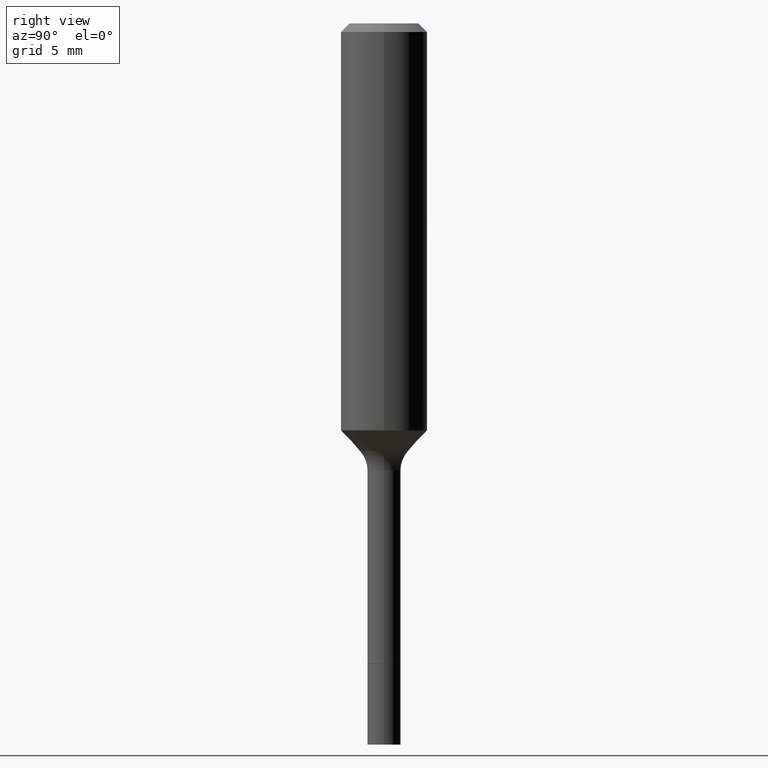
[diagram: clean part render]
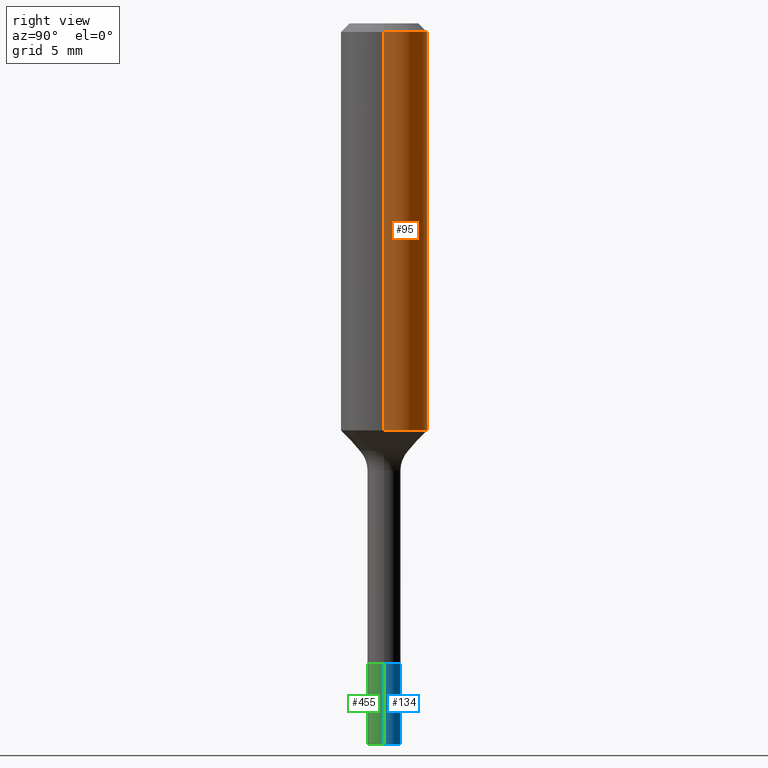
[diagram: same view with three faces highlighted in distinct colors, each labeled with its STEP entity id]
A machine part, right view with three faces highlighted in distinct colors.
Their STEP definitions:

[orange] entity #95 — the highlighted cylindrical surface (partial cylindrical patch) has radius 2.9997 mm, axis along (-0, 0, 1).
#15 = AXIS2_PLACEMENT_3D ( 'NONE', #96, #252, #222 ) ;
#18 = EDGE_CURVE ( 'NONE', #481, #494, #454, .T. ) ;
#31 = DIRECTION ( 'NONE',  ( -2.445468806185136597E-29, 3.491481338843145583E-15, 1.000000000000000000 ) ) ;
#37 = CARTESIAN_POINT ( 'NONE',  ( 0.1181000000000001354, -4.703439871600973275E-15, -1.110918719861007542 ) ) ;
#60 = CARTESIAN_POINT ( 'NONE',  ( -0.1180999999999999966, -1.141459413362170855E-15, -0.02362000000000013741 ) ) ;
#84 = CIRCLE ( 'NONE', #15, 0.1180999999999999966 ) ;
#95 = ADVANCED_FACE ( 'NONE', ( #390 ), #116, .T. ) ;
#96 = CARTESIAN_POINT ( 'NONE',  ( 5.776197320209326656E-31, -8.246878922347558061E-17, -0.02362000000000013741 ) ) ;
#102 = CARTESIAN_POINT ( 'NONE',  ( -0.1181000000000000660, 8.391509709326787887E-16, -5.809262341591047287E-30 ) ) ;
#116 = CYLINDRICAL_SURFACE ( 'NONE', #309, 0.1181000000000000660 ) ;
#121 = ORIENTED_EDGE ( 'NONE', *, *, #471, .F. ) ;
#125 = ORIENTED_EDGE ( 'NONE', *, *, #18, .T. ) ;
#142 = LINE ( 'NONE', #216, #332 ) ;
#145 = CARTESIAN_POINT ( 'NONE',  ( 2.716717075627218556E-29, -3.878751979366224224E-15, -1.110918719861007542 ) ) ;
#184 = VECTOR ( 'NONE', #220, 39.37007874015748143 ) ;
#216 = CARTESIAN_POINT ( 'NONE',  ( 0.1181000000000000660, -8.246878922347485584E-16, 5.758764772215003944E-30 ) ) ;
#220 = DIRECTION ( 'NONE',  ( -2.445468806185136877E-29, 3.491481338843145188E-15, 1.000000000000000000 ) ) ;
#222 = DIRECTION ( 'NONE',  ( 1.000000000000000000, -6.982962677686266711E-15, 0.000000000000000000 ) ) ;
#252 = DIRECTION ( 'NONE',  ( -2.445468806185136597E-29, 3.491481338843145583E-15, 1.000000000000000000 ) ) ;
#259 = VERTEX_POINT ( 'NONE', #37 ) ;
#279 = VERTEX_POINT ( 'NONE', #437 ) ;
#309 = AXIS2_PLACEMENT_3D ( 'NONE', #507, #31, #424 ) ;
#310 = CIRCLE ( 'NONE', #371, 0.1181000000000001354 ) ;
#324 = ORIENTED_EDGE ( 'NONE', *, *, #503, .T. ) ;
#332 = VECTOR ( 'NONE', #498, 39.37007874015748143 ) ;
#340 = CARTESIAN_POINT ( 'NONE',  ( -0.1181000000000001354, -3.039601008433544844E-15, -1.110918719861007542 ) ) ;
#371 = AXIS2_PLACEMENT_3D ( 'NONE', #145, #452, #373 ) ;
#373 = DIRECTION ( 'NONE',  ( 1.000000000000000000, -6.982962677686265133E-15, 0.000000000000000000 ) ) ;
#390 = FACE_OUTER_BOUND ( 'NONE', #412, .T. ) ;
#412 = EDGE_LOOP ( 'NONE', ( #324, #125, #121, #422 ) ) ;
#422 = ORIENTED_EDGE ( 'NONE', *, *, #466, .F. ) ;
#424 = DIRECTION ( 'NONE',  ( 1.000000000000000000, -6.982962677686266711E-15, 4.876176775795936353E-29 ) ) ;
#437 = CARTESIAN_POINT ( 'NONE',  ( 0.1180999999999999966, -9.071566814582237199E-16, -0.02362000000000013741 ) ) ;
#452 = DIRECTION ( 'NONE',  ( -2.445468806185136597E-29, 3.491481338843145583E-15, 1.000000000000000000 ) ) ;
#454 = LINE ( 'NONE', #102, #184 ) ;
#466 = EDGE_CURVE ( 'NONE', #259, #279, #142, .T. ) ;
#471 = EDGE_CURVE ( 'NONE', #279, #494, #84, .T. ) ;
#481 = VERTEX_POINT ( 'NONE', #340 ) ;
#494 = VERTEX_POINT ( 'NONE', #60 ) ;
#498 = DIRECTION ( 'NONE',  ( -2.445468806185136877E-29, 3.491481338843145188E-15, 1.000000000000000000 ) ) ;
#503 = EDGE_CURVE ( 'NONE', #259, #481, #310, .T. ) ;
#507 = CARTESIAN_POINT ( 'NONE',  ( 0.000000000000000000, 0.000000000000000000, 0.000000000000000000 ) ) ;

[blue] entity #134 — the highlighted cylindrical surface (edge-blend (fillet) strip) has radius 1.1506 mm, axis along (-0, 0, 1).
#1 = VERTEX_POINT ( 'NONE', #415 ) ;
#17 = VERTEX_POINT ( 'NONE', #226 ) ;
#27 = CIRCLE ( 'NONE', #81, 0.04529999999999999999 ) ;
#32 = DIRECTION ( 'NONE',  ( -2.445468806185136597E-29, 3.491481338843145583E-15, 1.000000000000000000 ) ) ;
#57 = CARTESIAN_POINT ( 'NONE',  ( 4.813905344975441835E-29, -6.872981015512731707E-15, -1.968500000000000139 ) ) ;
#69 = LINE ( 'NONE', #474, #156 ) ;
#73 = CARTESIAN_POINT ( 'NONE',  ( 0.04530000000000011795, -7.189309224811920776E-15, -1.968500000000000139 ) ) ;
#75 = LINE ( 'NONE', #190, #361 ) ;
#81 = AXIS2_PLACEMENT_3D ( 'NONE', #350, #469, #505 ) ;
#89 = CARTESIAN_POINT ( 'NONE',  ( -0.04529999999999999999, -6.165296468271238208E-15, -1.747500000000000053 ) ) ;
#114 = EDGE_CURVE ( 'NONE', #169, #17, #75, .T. ) ;
#134 = ADVANCED_FACE ( 'NONE', ( #196 ), #154, .T. ) ;
#144 = EDGE_CURVE ( 'NONE', #17, #291, #27, .T. ) ;
#154 = CYLINDRICAL_SURFACE ( 'NONE', #236, 0.04530000000000006244 ) ;
#156 = VECTOR ( 'NONE', #229, 39.37007874015748143 ) ;
#169 = VERTEX_POINT ( 'NONE', #73 ) ;
#190 = CARTESIAN_POINT ( 'NONE',  ( 0.04530000000000006244, -6.417691848927585433E-15, -1.747500000000000053 ) ) ;
#196 = FACE_OUTER_BOUND ( 'NONE', #284, .T. ) ;
#226 = CARTESIAN_POINT ( 'NONE',  ( 0.04529999999999999999, -6.417691848927585433E-15, -1.747500000000000053 ) ) ;
#229 = DIRECTION ( 'NONE',  ( -2.445468806185136877E-29, 3.491481338843145188E-15, 1.000000000000000000 ) ) ;
#232 = EDGE_CURVE ( 'NONE', #1, #291, #69, .T. ) ;
#236 = AXIS2_PLACEMENT_3D ( 'NONE', #463, #32, #306 ) ;
#237 = AXIS2_PLACEMENT_3D ( 'NONE', #57, #250, #336 ) ;
#250 = DIRECTION ( 'NONE',  ( -2.445468806185136597E-29, 3.491481338843145583E-15, 1.000000000000000000 ) ) ;
#255 = ORIENTED_EDGE ( 'NONE', *, *, #232, .T. ) ;
#284 = EDGE_LOOP ( 'NONE', ( #497, #255, #316, #484 ) ) ;
#291 = VERTEX_POINT ( 'NONE', #89 ) ;
#306 = DIRECTION ( 'NONE',  ( 1.000000000000000000, -6.982962677686261189E-15, 0.000000000000000000 ) ) ;
#316 = ORIENTED_EDGE ( 'NONE', *, *, #144, .F. ) ;
#336 = DIRECTION ( 'NONE',  ( 1.000000000000000000, -6.982962677686273810E-15, 0.000000000000000000 ) ) ;
#350 = CARTESIAN_POINT ( 'NONE',  ( 4.273456738808526158E-29, -6.101363639628397942E-15, -1.747500000000000053 ) ) ;
#361 = VECTOR ( 'NONE', #385, 39.37007874015748143 ) ;
#385 = DIRECTION ( 'NONE',  ( -2.445468806185136877E-29, 3.491481338843145188E-15, 1.000000000000000000 ) ) ;
#415 = CARTESIAN_POINT ( 'NONE',  ( -0.04530000000000011795, -6.165296468271237419E-15, -1.968500000000000139 ) ) ;
#463 = CARTESIAN_POINT ( 'NONE',  ( 4.273456738808526158E-29, -6.101363639628397942E-15, -1.747500000000000053 ) ) ;
#464 = CIRCLE ( 'NONE', #237, 0.04530000000000011795 ) ;
#468 = EDGE_CURVE ( 'NONE', #169, #1, #464, .T. ) ;
#469 = DIRECTION ( 'NONE',  ( -2.445468806185136597E-29, 3.491481338843145583E-15, 1.000000000000000000 ) ) ;
#474 = CARTESIAN_POINT ( 'NONE',  ( -0.04530000000000006244, -5.779487780329071720E-15, -1.747500000000000053 ) ) ;
#484 = ORIENTED_EDGE ( 'NONE', *, *, #114, .F. ) ;
#497 = ORIENTED_EDGE ( 'NONE', *, *, #468, .T. ) ;
#505 = DIRECTION ( 'NONE',  ( 1.000000000000000000, -6.982962677686271444E-15, 0.000000000000000000 ) ) ;

[green] entity #455 — the highlighted cylindrical surface (edge-blend (fillet) strip) has radius 1.1506 mm, axis along (-0, 0, 1).
#1 = VERTEX_POINT ( 'NONE', #415 ) ;
#17 = VERTEX_POINT ( 'NONE', #226 ) ;
#51 = AXIS2_PLACEMENT_3D ( 'NONE', #366, #417, #329 ) ;
#69 = LINE ( 'NONE', #474, #156 ) ;
#71 = CARTESIAN_POINT ( 'NONE',  ( 4.273456738808526158E-29, -6.101363639628397942E-15, -1.747500000000000053 ) ) ;
#73 = CARTESIAN_POINT ( 'NONE',  ( 0.04530000000000011795, -7.189309224811920776E-15, -1.968500000000000139 ) ) ;
#75 = LINE ( 'NONE', #190, #361 ) ;
#77 = EDGE_CURVE ( 'NONE', #1, #169, #330, .T. ) ;
#89 = CARTESIAN_POINT ( 'NONE',  ( -0.04529999999999999999, -6.165296468271238208E-15, -1.747500000000000053 ) ) ;
#93 = AXIS2_PLACEMENT_3D ( 'NONE', #118, #228, #149 ) ;
#114 = EDGE_CURVE ( 'NONE', #169, #17, #75, .T. ) ;
#118 = CARTESIAN_POINT ( 'NONE',  ( 4.813905344975441835E-29, -6.872981015512731707E-15, -1.968500000000000139 ) ) ;
#149 = DIRECTION ( 'NONE',  ( 1.000000000000000000, -6.982962677686273810E-15, 0.000000000000000000 ) ) ;
#156 = VECTOR ( 'NONE', #229, 39.37007874015748143 ) ;
#169 = VERTEX_POINT ( 'NONE', #73 ) ;
#187 = CYLINDRICAL_SURFACE ( 'NONE', #51, 0.04530000000000006244 ) ;
#190 = CARTESIAN_POINT ( 'NONE',  ( 0.04530000000000006244, -6.417691848927585433E-15, -1.747500000000000053 ) ) ;
#206 = EDGE_CURVE ( 'NONE', #291, #17, #388, .T. ) ;
#213 = EDGE_LOOP ( 'NONE', ( #438, #244, #372, #253 ) ) ;
#226 = CARTESIAN_POINT ( 'NONE',  ( 0.04529999999999999999, -6.417691848927585433E-15, -1.747500000000000053 ) ) ;
#228 = DIRECTION ( 'NONE',  ( -2.445468806185136597E-29, 3.491481338843145583E-15, 1.000000000000000000 ) ) ;
#229 = DIRECTION ( 'NONE',  ( -2.445468806185136877E-29, 3.491481338843145188E-15, 1.000000000000000000 ) ) ;
#232 = EDGE_CURVE ( 'NONE', #1, #291, #69, .T. ) ;
#244 = ORIENTED_EDGE ( 'NONE', *, *, #77, .T. ) ;
#253 = ORIENTED_EDGE ( 'NONE', *, *, #206, .F. ) ;
#266 = DIRECTION ( 'NONE',  ( 1.000000000000000000, -6.982962677686271444E-15, 0.000000000000000000 ) ) ;
#291 = VERTEX_POINT ( 'NONE', #89 ) ;
#304 = DIRECTION ( 'NONE',  ( -2.445468806185136597E-29, 3.491481338843145583E-15, 1.000000000000000000 ) ) ;
#329 = DIRECTION ( 'NONE',  ( 1.000000000000000000, -6.982962677686261189E-15, 0.000000000000000000 ) ) ;
#330 = CIRCLE ( 'NONE', #93, 0.04530000000000011795 ) ;
#361 = VECTOR ( 'NONE', #385, 39.37007874015748143 ) ;
#366 = CARTESIAN_POINT ( 'NONE',  ( 4.273456738808526158E-29, -6.101363639628397942E-15, -1.747500000000000053 ) ) ;
#372 = ORIENTED_EDGE ( 'NONE', *, *, #114, .T. ) ;
#385 = DIRECTION ( 'NONE',  ( -2.445468806185136877E-29, 3.491481338843145188E-15, 1.000000000000000000 ) ) ;
#388 = CIRCLE ( 'NONE', #492, 0.04529999999999999999 ) ;
#411 = FACE_OUTER_BOUND ( 'NONE', #213, .T. ) ;
#415 = CARTESIAN_POINT ( 'NONE',  ( -0.04530000000000011795, -6.165296468271237419E-15, -1.968500000000000139 ) ) ;
#417 = DIRECTION ( 'NONE',  ( -2.445468806185136597E-29, 3.491481338843145583E-15, 1.000000000000000000 ) ) ;
#438 = ORIENTED_EDGE ( 'NONE', *, *, #232, .F. ) ;
#455 = ADVANCED_FACE ( 'NONE', ( #411 ), #187, .T. ) ;
#474 = CARTESIAN_POINT ( 'NONE',  ( -0.04530000000000006244, -5.779487780329071720E-15, -1.747500000000000053 ) ) ;
#492 = AXIS2_PLACEMENT_3D ( 'NONE', #71, #304, #266 ) ;